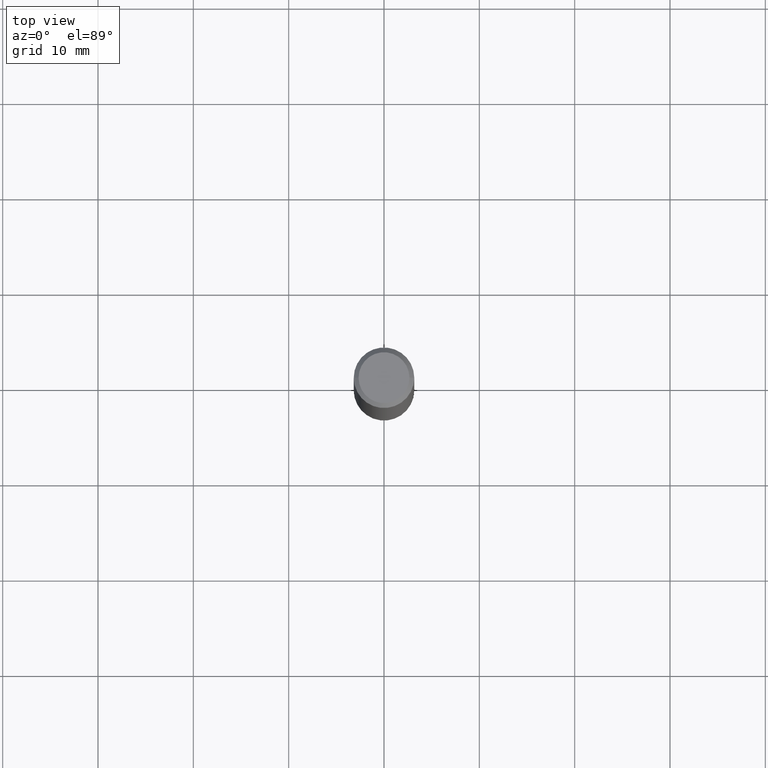
[diagram: clean part render]
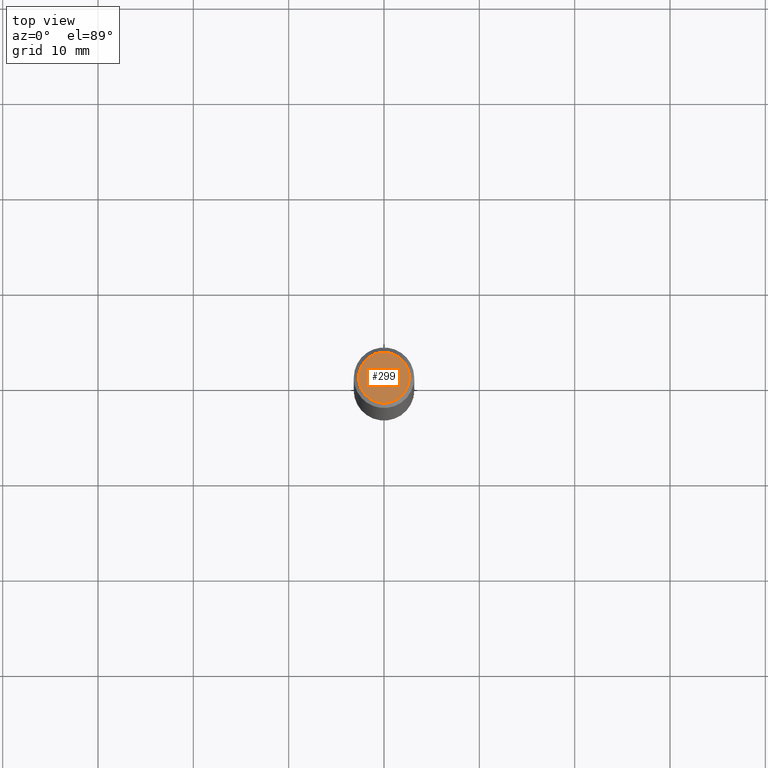
[diagram: same view with one face highlighted and labeled with its STEP entity id]
A machine part, top view. The second image highlights one B-rep face of the part: STEP entity #299.
In plain terms, the highlighted planar face has unit normal (0, -0, -1).
Its self-contained STEP definition (entity closure, byte-faithful):
#11 = DIRECTION ( 'NONE',  ( -1.000000000000000000, 6.982962677686265922E-15, -4.876176775795935793E-29 ) ) ;
#32 = DIRECTION ( 'NONE',  ( -2.445468806185136597E-29, 3.491481338843145583E-15, 1.000000000000000000 ) ) ;
#38 = ORIENTED_EDGE ( 'NONE', *, *, #120, .T. ) ;
#44 = CARTESIAN_POINT ( 'NONE',  ( -0.1049999999999993577, 7.681258945454844472E-16, -4.268512490100935748E-17 ) ) ;
#60 = CIRCLE ( 'NONE', #207, 0.1049999999999993577 ) ;
#105 = PLANE ( 'NONE',  #359 ) ;
#120 = EDGE_CURVE ( 'NONE', #418, #460, #235, .T. ) ;
#146 = CARTESIAN_POINT ( 'NONE',  ( 1.043851414335219781E-45, -1.490343170380447145E-31, -4.268512490100411279E-17 ) ) ;
#207 = AXIS2_PLACEMENT_3D ( 'NONE', #146, #32, #292 ) ;
#235 = CIRCLE ( 'NONE', #481, 0.1049999999999993577 ) ;
#247 = CARTESIAN_POINT ( 'NONE',  ( 1.043851414335219781E-45, -1.490343170380447145E-31, -4.268512490100411279E-17 ) ) ;
#266 = EDGE_CURVE ( 'NONE', #460, #418, #60, .T. ) ;
#292 = DIRECTION ( 'NONE',  ( 1.000000000000000000, -6.982962677686267499E-15, 4.874400871621268483E-29 ) ) ;
#299 = ADVANCED_FACE ( 'NONE', ( #484 ), #105, .F. ) ;
#342 = CARTESIAN_POINT ( 'NONE',  ( 7.332110811570533898E-16, 0.1049999999999993577, -3.879481030290301102E-16 ) ) ;
#351 = ORIENTED_EDGE ( 'NONE', *, *, #266, .T. ) ;
#359 = AXIS2_PLACEMENT_3D ( 'NONE', #342, #419, #11 ) ;
#394 = CARTESIAN_POINT ( 'NONE',  ( 0.1049999999999993577, -8.238720831321533257E-16, -4.268512490099867088E-17 ) ) ;
#418 = VERTEX_POINT ( 'NONE', #44 ) ;
#419 = DIRECTION ( 'NONE',  ( 2.438088387897960049E-29, -3.491481338843145188E-15, -1.000000000000000000 ) ) ;
#437 = EDGE_LOOP ( 'NONE', ( #38, #351 ) ) ;
#449 = DIRECTION ( 'NONE',  ( 1.000000000000000000, -6.982962677686267499E-15, 4.874400871621268483E-29 ) ) ;
#460 = VERTEX_POINT ( 'NONE', #394 ) ;
#481 = AXIS2_PLACEMENT_3D ( 'NONE', #247, #491, #449 ) ;
#484 = FACE_OUTER_BOUND ( 'NONE', #437, .T. ) ;
#491 = DIRECTION ( 'NONE',  ( -2.445468806185136597E-29, 3.491481338843145583E-15, 1.000000000000000000 ) ) ;